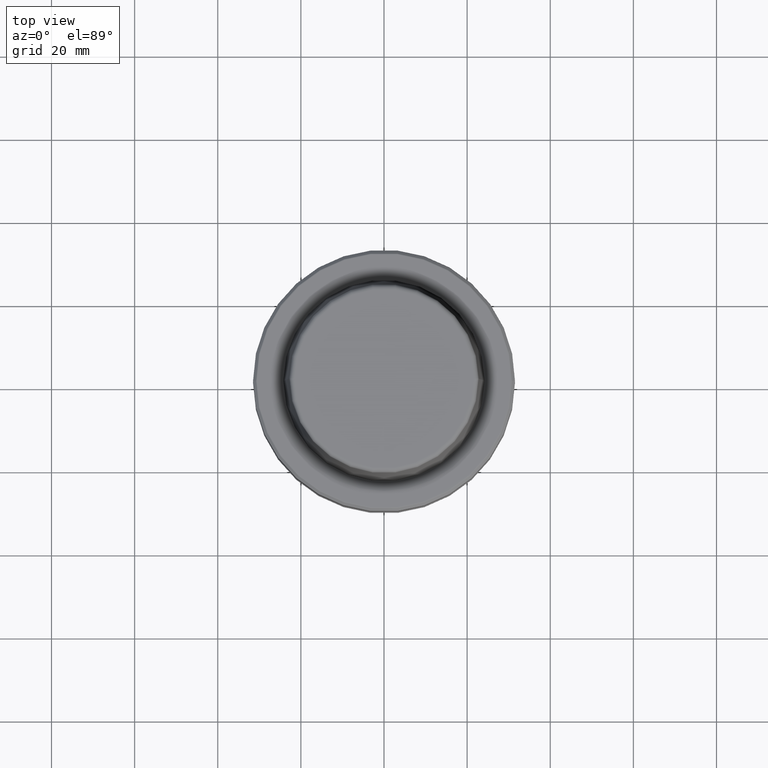
[diagram: clean part render]
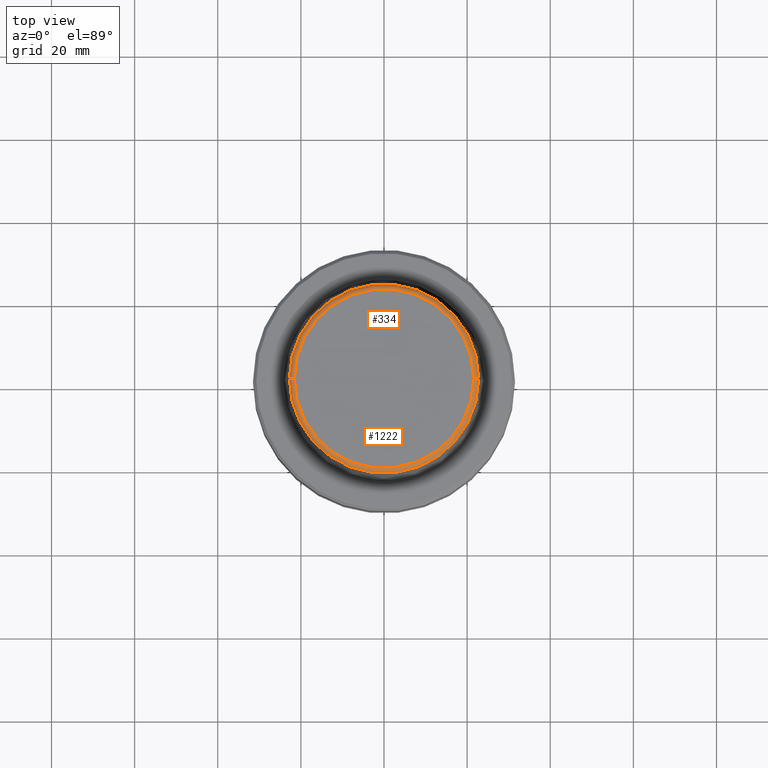
[diagram: same view with one multi-face feature highlighted, each face labeled with its STEP entity id]
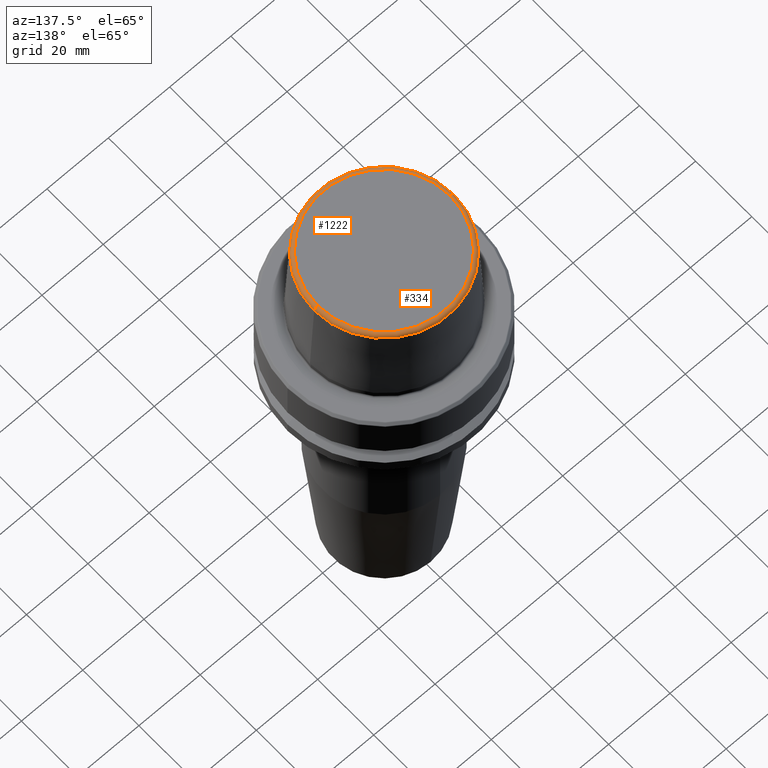
[diagram: same view with one multi-face feature highlighted, each face labeled with its STEP entity id]
A machine part, top view. The highlighted faces form ONE feature: a constant-radius fillet chain: 2 tangent blend faces with common blend radius 1.2 mm. The faces share edges in the B-rep.
A second angle (auxiliary view) of the same feature is appended — it is thin or edge-on in the first view.
Their STEP definitions:
[1] entity #1222 (Torus):
#42 = DIRECTION ( 'NONE',  ( 1.000000000000000000, 0.0000000000000000000, 0.0000000000000000000 ) ) ;
#43 = CARTESIAN_POINT ( 'NONE',  ( 0.0000000000000000000, 0.0000000000000000000, 30.76004333261571900 ) ) ;
#67 = DIRECTION ( 'NONE',  ( 1.224646799147353200E-016, 1.000000000000000000, 0.0000000000000000000 ) ) ;
#74 = EDGE_LOOP ( 'NONE', ( #1181, #537, #132, #176 ) ) ;
#132 = ORIENTED_EDGE ( 'NONE', *, *, #893, .T. ) ;
#173 = CIRCLE ( 'NONE', #635, 1.200000000000003100 ) ;
#176 = ORIENTED_EDGE ( 'NONE', *, *, #863, .F. ) ;
#180 = VERTEX_POINT ( 'NONE', #740 ) ;
#191 = DIRECTION ( 'NONE',  ( -0.0000000000000000000, -0.0000000000000000000, 1.000000000000000000 ) ) ;
#194 = CARTESIAN_POINT ( 'NONE',  ( -22.77957961851797100, 0.0000000000000000000, 30.76004333261571900 ) ) ;
#202 = CIRCLE ( 'NONE', #770, 21.58108272732117100 ) ;
#221 = DIRECTION ( 'NONE',  ( 1.000000000000000000, 0.0000000000000000000, 0.0000000000000000000 ) ) ;
#245 = AXIS2_PLACEMENT_3D ( 'NONE', #43, #1095, #221 ) ;
#330 = EDGE_CURVE ( 'NONE', #1230, #523, #173, .T. ) ;
#467 = EDGE_CURVE ( 'NONE', #1230, #180, #1216, .T. ) ;
#468 = CARTESIAN_POINT ( 'NONE',  ( 0.0000000000000000000, 0.0000000000000000000, 30.69999999999999200 ) ) ;
#497 = DIRECTION ( 'NONE',  ( 0.0000000000000000000, -1.000000000000000000, 0.0000000000000000000 ) ) ;
#523 = VERTEX_POINT ( 'NONE', #772 ) ;
#537 = ORIENTED_EDGE ( 'NONE', *, *, #467, .T. ) ;
#555 = VERTEX_POINT ( 'NONE', #1182 ) ;
#587 = TOROIDAL_SURFACE ( 'NONE', #1111, 21.58108272732117100, 1.200000000000003100 ) ;
#589 = DIRECTION ( 'NONE',  ( -0.0000000000000000000, -0.0000000000000000000, 1.000000000000000000 ) ) ;
#635 = AXIS2_PLACEMENT_3D ( 'NONE', #1125, #67, #860 ) ;
#740 = CARTESIAN_POINT ( 'NONE',  ( 22.77957961851797100, 2.876386432489616700E-015, 30.76004333261571900 ) ) ;
#770 = AXIS2_PLACEMENT_3D ( 'NONE', #1197, #589, #42 ) ;
#772 = CARTESIAN_POINT ( 'NONE',  ( -21.58108272732117100, 2.716307157494421400E-015, 31.89999999999999900 ) ) ;
#846 = CIRCLE ( 'NONE', #905, 1.200000000000003100 ) ;
#860 = DIRECTION ( 'NONE',  ( -1.000000000000000000, 1.224646799147353200E-016, 0.0000000000000000000 ) ) ;
#863 = EDGE_CURVE ( 'NONE', #523, #555, #202, .T. ) ;
#893 = EDGE_CURVE ( 'NONE', #180, #555, #846, .T. ) ;
#905 = AXIS2_PLACEMENT_3D ( 'NONE', #1098, #497, #1201 ) ;
#1095 = DIRECTION ( 'NONE',  ( -0.0000000000000000000, -0.0000000000000000000, 1.000000000000000000 ) ) ;
#1098 = CARTESIAN_POINT ( 'NONE',  ( 21.58108272732117100, 0.0000000000000000000, 30.69999999999999200 ) ) ;
#1111 = AXIS2_PLACEMENT_3D ( 'NONE', #468, #191, #1168 ) ;
#1125 = CARTESIAN_POINT ( 'NONE',  ( -21.58108272732117100, 2.642920388414810300E-015, 30.69999999999999200 ) ) ;
#1129 = FACE_OUTER_BOUND ( 'NONE', #74, .T. ) ;
#1168 = DIRECTION ( 'NONE',  ( 1.000000000000000000, 0.0000000000000000000, 0.0000000000000000000 ) ) ;
#1181 = ORIENTED_EDGE ( 'NONE', *, *, #330, .F. ) ;
#1182 = CARTESIAN_POINT ( 'NONE',  ( 21.58108272732117100, 0.0000000000000000000, 31.89999999999999900 ) ) ;
#1197 = CARTESIAN_POINT ( 'NONE',  ( 0.0000000000000000000, 0.0000000000000000000, 31.89999999999999900 ) ) ;
#1201 = DIRECTION ( 'NONE',  ( 0.0000000000000000000, 0.0000000000000000000, -1.000000000000000000 ) ) ;
#1216 = CIRCLE ( 'NONE', #245, 22.77957961851797100 ) ;
#1222 = ADVANCED_FACE ( 'NONE', ( #1129 ), #587, .T. ) ;
#1230 = VERTEX_POINT ( 'NONE', #194 ) ;
[2] entity #334 (Torus):
#6 = ORIENTED_EDGE ( 'NONE', *, *, #893, .F. ) ;
#25 = EDGE_CURVE ( 'NONE', #180, #1230, #140, .T. ) ;
#67 = DIRECTION ( 'NONE',  ( 1.224646799147353200E-016, 1.000000000000000000, 0.0000000000000000000 ) ) ;
#104 = CIRCLE ( 'NONE', #508, 21.58108272732117100 ) ;
#108 = DIRECTION ( 'NONE',  ( 1.000000000000000000, 0.0000000000000000000, 0.0000000000000000000 ) ) ;
#140 = CIRCLE ( 'NONE', #451, 22.77957961851797100 ) ;
#173 = CIRCLE ( 'NONE', #635, 1.200000000000003100 ) ;
#180 = VERTEX_POINT ( 'NONE', #740 ) ;
#194 = CARTESIAN_POINT ( 'NONE',  ( -22.77957961851797100, 0.0000000000000000000, 30.76004333261571900 ) ) ;
#330 = EDGE_CURVE ( 'NONE', #1230, #523, #173, .T. ) ;
#334 = ADVANCED_FACE ( 'NONE', ( #392 ), #641, .T. ) ;
#392 = FACE_OUTER_BOUND ( 'NONE', #496, .T. ) ;
#397 = ORIENTED_EDGE ( 'NONE', *, *, #25, .T. ) ;
#407 = DIRECTION ( 'NONE',  ( 1.000000000000000000, 0.0000000000000000000, 0.0000000000000000000 ) ) ;
#451 = AXIS2_PLACEMENT_3D ( 'NONE', #1043, #1152, #1060 ) ;
#474 = ORIENTED_EDGE ( 'NONE', *, *, #621, .F. ) ;
#496 = EDGE_LOOP ( 'NONE', ( #397, #990, #474, #6 ) ) ;
#497 = DIRECTION ( 'NONE',  ( 0.0000000000000000000, -1.000000000000000000, 0.0000000000000000000 ) ) ;
#498 = DIRECTION ( 'NONE',  ( -0.0000000000000000000, -0.0000000000000000000, 1.000000000000000000 ) ) ;
#508 = AXIS2_PLACEMENT_3D ( 'NONE', #1099, #498, #407 ) ;
#523 = VERTEX_POINT ( 'NONE', #772 ) ;
#555 = VERTEX_POINT ( 'NONE', #1182 ) ;
#612 = DIRECTION ( 'NONE',  ( -0.0000000000000000000, -0.0000000000000000000, 1.000000000000000000 ) ) ;
#621 = EDGE_CURVE ( 'NONE', #555, #523, #104, .T. ) ;
#635 = AXIS2_PLACEMENT_3D ( 'NONE', #1125, #67, #860 ) ;
#641 = TOROIDAL_SURFACE ( 'NONE', #774, 21.58108272732117100, 1.200000000000003100 ) ;
#714 = CARTESIAN_POINT ( 'NONE',  ( 0.0000000000000000000, 0.0000000000000000000, 30.69999999999999200 ) ) ;
#740 = CARTESIAN_POINT ( 'NONE',  ( 22.77957961851797100, 2.876386432489616700E-015, 30.76004333261571900 ) ) ;
#772 = CARTESIAN_POINT ( 'NONE',  ( -21.58108272732117100, 2.716307157494421400E-015, 31.89999999999999900 ) ) ;
#774 = AXIS2_PLACEMENT_3D ( 'NONE', #714, #612, #108 ) ;
#846 = CIRCLE ( 'NONE', #905, 1.200000000000003100 ) ;
#860 = DIRECTION ( 'NONE',  ( -1.000000000000000000, 1.224646799147353200E-016, 0.0000000000000000000 ) ) ;
#893 = EDGE_CURVE ( 'NONE', #180, #555, #846, .T. ) ;
#905 = AXIS2_PLACEMENT_3D ( 'NONE', #1098, #497, #1201 ) ;
#990 = ORIENTED_EDGE ( 'NONE', *, *, #330, .T. ) ;
#1043 = CARTESIAN_POINT ( 'NONE',  ( 0.0000000000000000000, 0.0000000000000000000, 30.76004333261571900 ) ) ;
#1060 = DIRECTION ( 'NONE',  ( 1.000000000000000000, 0.0000000000000000000, 0.0000000000000000000 ) ) ;
#1098 = CARTESIAN_POINT ( 'NONE',  ( 21.58108272732117100, 0.0000000000000000000, 30.69999999999999200 ) ) ;
#1099 = CARTESIAN_POINT ( 'NONE',  ( 0.0000000000000000000, 0.0000000000000000000, 31.89999999999999900 ) ) ;
#1125 = CARTESIAN_POINT ( 'NONE',  ( -21.58108272732117100, 2.642920388414810300E-015, 30.69999999999999200 ) ) ;
#1152 = DIRECTION ( 'NONE',  ( -0.0000000000000000000, -0.0000000000000000000, 1.000000000000000000 ) ) ;
#1182 = CARTESIAN_POINT ( 'NONE',  ( 21.58108272732117100, 0.0000000000000000000, 31.89999999999999900 ) ) ;
#1201 = DIRECTION ( 'NONE',  ( 0.0000000000000000000, 0.0000000000000000000, -1.000000000000000000 ) ) ;
#1230 = VERTEX_POINT ( 'NONE', #194 ) ;